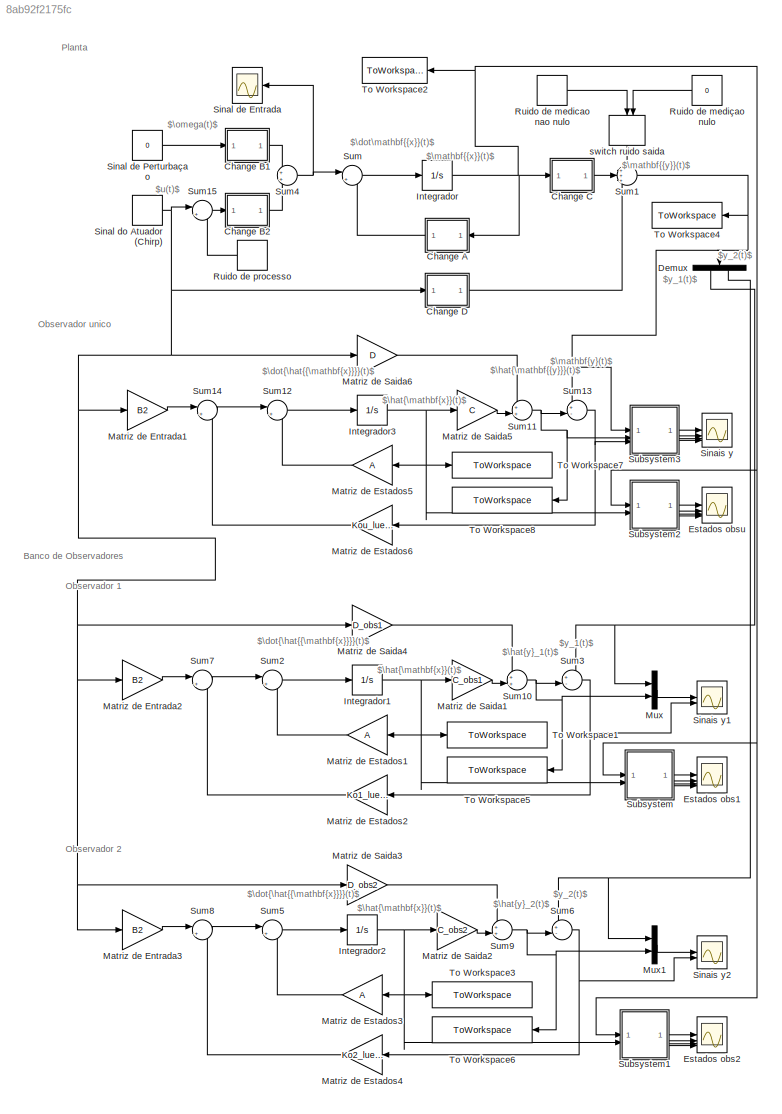
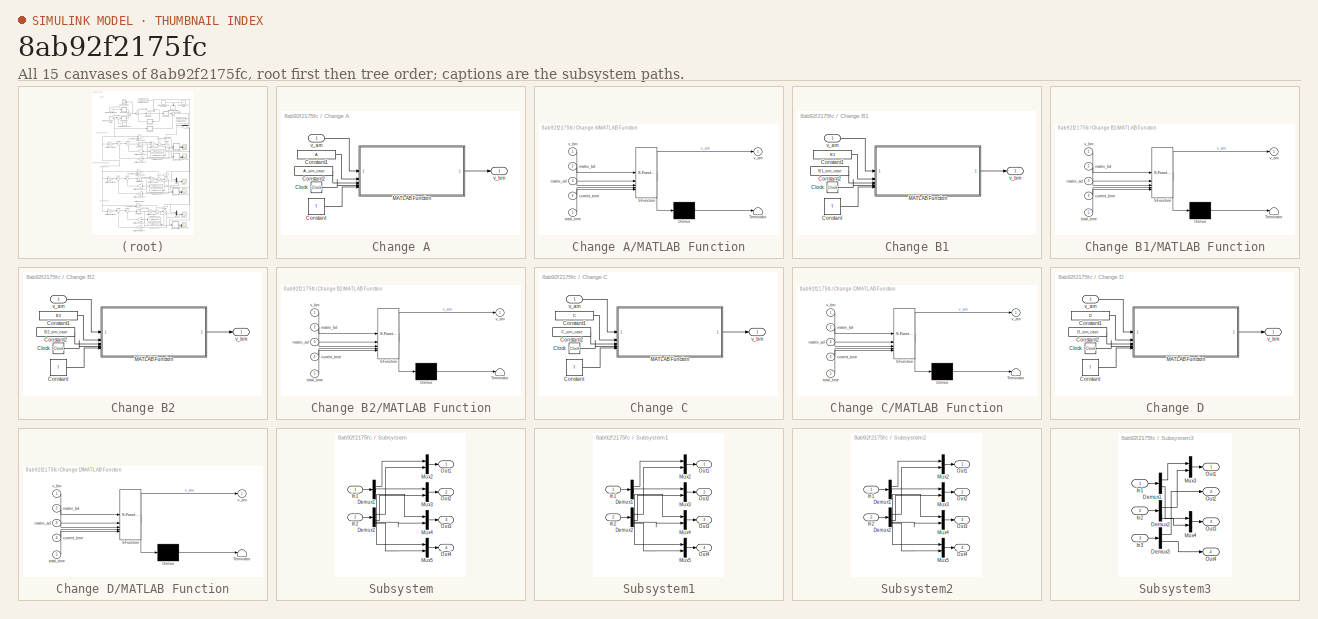
[diagram: thumbnail index - all 15 canvases of the model, root first then tree order]
MODEL slx_8ab92f2175fc
KIND model
CONFIG AbsTol = auto
CONFIG EnableMultiTasking = off
CONFIG FixedStep = dt
CONFIG MaxStep = auto
CONFIG MinStep = auto
CONFIG RelTol = 1e-3
CONFIG SampleTimeConstraint = Unconstrained
CONFIG SolverName = FixedStepAuto
CONFIG StartTime = 0.0
CONFIG StopTime = T
BLOCK [SubSystem] Change A
  NameLocation = top
BLOCK [Clock] Change A/Clock
BLOCK [Constant] Change A/Constant
  Value = T
BLOCK [Constant] Change A/Constant1
  Value = A
BLOCK [Constant] Change A/Constant2
  Value = A_sim_case
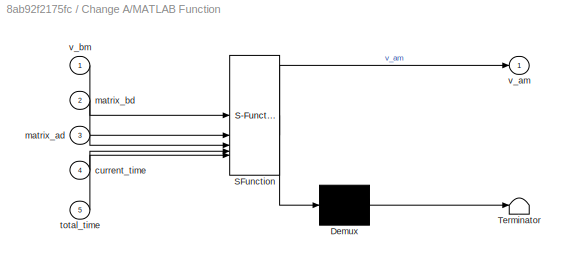
BLOCK [SubSystem] Change A/MATLAB Function
  ErrorFcn = Stateflow.Translate.translate
  LibrarySourceBlock = simulink/User-Defined\nFunctions/MATLAB Function
  PermitHierarchicalResolution = ExplicitOnly
  SFBlockType = MATLAB Function
  TreatAsAtomicUnit = on
BLOCK [Demux] Change A/MATLAB Function/ Demux 
  Outputs = 1
BLOCK [S-Function] Change A/MATLAB Function/ SFunction 
  EnableBusSupport = on
  FunctionName = sf_sfun
  PortCounts = [5 2]
  SFcnIsStateOwnerBlock = off
  SFunctionDeploymentMode = off
  Tag = Stateflow S-Function 3
BLOCK [Terminator] Change A/MATLAB Function/ Terminator 
BLOCK [Inport] Change A/MATLAB Function/current_time
  Port = 4
BLOCK [Inport] Change A/MATLAB Function/matrix_ad
  Port = 3
BLOCK [Inport] Change A/MATLAB Function/matrix_bd
  Port = 2
BLOCK [Inport] Change A/MATLAB Function/total_time
  Port = 5
BLOCK [Outport] Change A/MATLAB Function/v_am
BLOCK [Inport] Change A/MATLAB Function/v_bm
BLOCK [Inport] Change A/v_am
BLOCK [Outport] Change A/v_bm
BLOCK [SubSystem] Change B1
BLOCK [Clock] Change B1/Clock
BLOCK [Constant] Change B1/Constant
  Value = T
BLOCK [Constant] Change B1/Constant1
  Value = B1
BLOCK [Constant] Change B1/Constant2
  Value = B1_sim_case
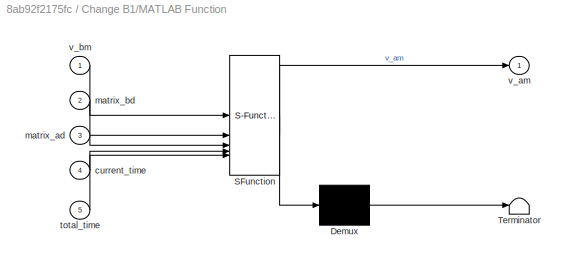
BLOCK [SubSystem] Change B1/MATLAB Function
  ErrorFcn = Stateflow.Translate.translate
  LibrarySourceBlock = simulink/User-Defined\nFunctions/MATLAB Function
  PermitHierarchicalResolution = ExplicitOnly
  SFBlockType = MATLAB Function
  TreatAsAtomicUnit = on
BLOCK [Demux] Change B1/MATLAB Function/ Demux 
  Outputs = 1
BLOCK [S-Function] Change B1/MATLAB Function/ SFunction 
  EnableBusSupport = on
  FunctionName = sf_sfun
  PortCounts = [5 2]
  SFcnIsStateOwnerBlock = off
  SFunctionDeploymentMode = off
  Tag = Stateflow S-Function 1
BLOCK [Terminator] Change B1/MATLAB Function/ Terminator 
BLOCK [Inport] Change B1/MATLAB Function/current_time
  Port = 4
BLOCK [Inport] Change B1/MATLAB Function/matrix_ad
  Port = 3
BLOCK [Inport] Change B1/MATLAB Function/matrix_bd
  Port = 2
BLOCK [Inport] Change B1/MATLAB Function/total_time
  Port = 5
BLOCK [Outport] Change B1/MATLAB Function/v_am
BLOCK [Inport] Change B1/MATLAB Function/v_bm
BLOCK [Inport] Change B1/v_am
BLOCK [Outport] Change B1/v_bm
BLOCK [SubSystem] Change B2
BLOCK [Clock] Change B2/Clock
BLOCK [Constant] Change B2/Constant
  Value = T
BLOCK [Constant] Change B2/Constant1
  Value = B2
BLOCK [Constant] Change B2/Constant2
  Value = B2_sim_case
BLOCK [SubSystem] Change B2/MATLAB Function
  ErrorFcn = Stateflow.Translate.translate
  LibrarySourceBlock = simulink/User-Defined\nFunctions/MATLAB Function
  PermitHierarchicalResolution = ExplicitOnly
  SFBlockType = MATLAB Function
  TreatAsAtomicUnit = on
BLOCK [Demux] Change B2/MATLAB Function/ Demux 
  Outputs = 1
BLOCK [S-Function] Change B2/MATLAB Function/ SFunction 
  EnableBusSupport = on
  FunctionName = sf_sfun
  PortCounts = [5 2]
  SFcnIsStateOwnerBlock = off
  SFunctionDeploymentMode = off
  Tag = Stateflow S-Function 6
BLOCK [Terminator] Change B2/MATLAB Function/ Terminator 
BLOCK [Inport] Change B2/MATLAB Function/current_time
  Port = 4
BLOCK [Inport] Change B2/MATLAB Function/matrix_ad
  Port = 3
BLOCK [Inport] Change B2/MATLAB Function/matrix_bd
  Port = 2
BLOCK [Inport] Change B2/MATLAB Function/total_time
  Port = 5
BLOCK [Outport] Change B2/MATLAB Function/v_am
BLOCK [Inport] Change B2/MATLAB Function/v_bm
BLOCK [Inport] Change B2/v_am
BLOCK [Outport] Change B2/v_bm
BLOCK [SubSystem] Change C
BLOCK [Clock] Change C/Clock
BLOCK [Constant] Change C/Constant
  Value = T
BLOCK [Constant] Change C/Constant1
  Value = C
BLOCK [Constant] Change C/Constant2
  Value = C_sim_case
BLOCK [SubSystem] Change C/MATLAB Function
  ErrorFcn = Stateflow.Translate.translate
  LibrarySourceBlock = simulink/User-Defined\nFunctions/MATLAB Function
  PermitHierarchicalResolution = ExplicitOnly
  SFBlockType = MATLAB Function
  TreatAsAtomicUnit = on
BLOCK [Demux] Change C/MATLAB Function/ Demux 
  Outputs = 1
BLOCK [S-Function] Change C/MATLAB Function/ SFunction 
  EnableBusSupport = on
  FunctionName = sf_sfun
  PortCounts = [5 2]
  SFcnIsStateOwnerBlock = off
  SFunctionDeploymentMode = off
  Tag = Stateflow S-Function 5
BLOCK [Terminator] Change C/MATLAB Function/ Terminator 
BLOCK [Inport] Change C/MATLAB Function/current_time
  Port = 4
BLOCK [Inport] Change C/MATLAB Function/matrix_ad
  Port = 3
BLOCK [Inport] Change C/MATLAB Function/matrix_bd
  Port = 2
BLOCK [Inport] Change C/MATLAB Function/total_time
  Port = 5
BLOCK [Outport] Change C/MATLAB Function/v_am
BLOCK [Inport] Change C/MATLAB Function/v_bm
BLOCK [Inport] Change C/v_am
BLOCK [Outport] Change C/v_bm
BLOCK [SubSystem] Change D
BLOCK [Clock] Change D/Clock
BLOCK [Constant] Change D/Constant
  Value = T
BLOCK [Constant] Change D/Constant1
  Value = D
BLOCK [Constant] Change D/Constant2
  Value = D_sim_case
BLOCK [SubSystem] Change D/MATLAB Function
  ErrorFcn = Stateflow.Translate.translate
  LibrarySourceBlock = simulink/User-Defined\nFunctions/MATLAB Function
  PermitHierarchicalResolution = ExplicitOnly
  SFBlockType = MATLAB Function
  TreatAsAtomicUnit = on
BLOCK [Demux] Change D/MATLAB Function/ Demux 
  Outputs = 1
BLOCK [S-Function] Change D/MATLAB Function/ SFunction 
  EnableBusSupport = on
  FunctionName = sf_sfun
  PortCounts = [5 2]
  SFcnIsStateOwnerBlock = off
  SFunctionDeploymentMode = off
  Tag = Stateflow S-Function 2
BLOCK [Terminator] Change D/MATLAB Function/ Terminator 
BLOCK [Inport] Change D/MATLAB Function/current_time
  Port = 4
BLOCK [Inport] Change D/MATLAB Function/matrix_ad
  Port = 3
BLOCK [Inport] Change D/MATLAB Function/matrix_bd
  Port = 2
BLOCK [Inport] Change D/MATLAB Function/total_time
  Port = 5
BLOCK [Outport] Change D/MATLAB Function/v_am
BLOCK [Inport] Change D/MATLAB Function/v_bm
BLOCK [Inport] Change D/v_am
BLOCK [Outport] Change D/v_bm
BLOCK [Demux] Demux
  NameLocation = left
  Outputs = 2
BLOCK [Scope] Estados obs1
  Floating = off
  NumInputPorts = 4
  ScopeSpecificationString = Simulink.scopes.TimeScopeBlockCfg('CurrentConfiguration', extmgr.ConfigurationSet(extmgr.Configuration('Core','General UI',true,'FigureColor',[1 1 1]),extmgr.Configuration('Core','Source UI',true),extmgr.Configuration('Sources','WiredSimulink',true,'DataLoggingVariableName','ScopeData1'),extmgr.Configuration('Visuals','Time Domain',true,'PlotType','Line','SerializedDisplays',{struct('MinYLimReal',...<+5014ch>
BLOCK [Scope] Estados obs2
  Floating = off
  NumInputPorts = 4
  ScopeSpecificationString = Simulink.scopes.TimeScopeBlockCfg('CurrentConfiguration', extmgr.ConfigurationSet(extmgr.Configuration('Core','General UI',true,'FigureColor',[1 1 1]),extmgr.Configuration('Core','Source UI',true),extmgr.Configuration('Sources','WiredSimulink',true,'DataLoggingVariableName','ScopeData2'),extmgr.Configuration('Visuals','Time Domain',true,'PlotType','Line','SerializedDisplays',{struct('MinYLimReal',...<+5012ch>
BLOCK [Scope] Estados obsu
  Floating = off
  NumInputPorts = 4
  ScopeSpecificationString = Simulink.scopes.TimeScopeBlockCfg('CurrentConfiguration', extmgr.ConfigurationSet(extmgr.Configuration('Core','General UI',true,'FigureColor',[1 1 1]),extmgr.Configuration('Core','Source UI',true),extmgr.Configuration('Sources','WiredSimulink',true,'DataLoggingVariableName','ScopeData1'),extmgr.Configuration('Visuals','Time Domain',true,'PlotType','Line','SerializedDisplays',{struct('MinYLimReal',...<+5010ch>
BLOCK [Integrator] Integrador
  InitialCondition = CI
BLOCK [Integrator] Integrador1
  InitialCondition = CI
BLOCK [Integrator] Integrador2
  InitialCondition = CI
BLOCK [Integrator] Integrador3
  InitialCondition = CI
BLOCK [Gain] Matriz de Entrada1
  Gain = B2
  Multiplication = Matrix(K*u)
BLOCK [Gain] Matriz de Entrada2
  Gain = B2
  Multiplication = Matrix(K*u)
BLOCK [Gain] Matriz de Entrada3
  Gain = B2
  Multiplication = Matrix(K*u)
BLOCK [Gain] Matriz de Estados1
  Gain = A
  Multiplication = Matrix(K*u)
BLOCK [Gain] Matriz de Estados2
  Gain = Ko1_luenberger_u
  Multiplication = Matrix(K*u)
BLOCK [Gain] Matriz de Estados3
  Gain = A
  Multiplication = Matrix(K*u)
BLOCK [Gain] Matriz de Estados4
  Gain = Ko2_luenberger_u
  Multiplication = Matrix(K*u)
BLOCK [Gain] Matriz de Estados5
  Gain = A
  Multiplication = Matrix(K*u)
BLOCK [Gain] Matriz de Estados6
  Gain = Kou_luenberger_u
  Multiplication = Matrix(K*u)
BLOCK [Gain] Matriz de Saida1
  Gain = C_obs1
  Multiplication = Matrix(K*u)
BLOCK [Gain] Matriz de Saida2
  Gain = C_obs2
  Multiplication = Matrix(K*u)
BLOCK [Gain] Matriz de Saida3
  Gain = D_obs2
  Multiplication = Matrix(K*u)
BLOCK [Gain] Matriz de Saida4
  Gain = D_obs1
  Multiplication = Matrix(K*u)
BLOCK [Gain] Matriz de Saida5
  Gain = C
  Multiplication = Matrix(K*u)
BLOCK [Gain] Matriz de Saida6
  Gain = D
  Multiplication = Matrix(K*u)
BLOCK [Mux] Mux
  DisplayOption = bar
  Inputs = 2
BLOCK [Mux] Mux1
  DisplayOption = bar
  Inputs = 2
BLOCK [FromFile] Ruido de medicao nao nulo
  FileName = ./../data/measurement_noise_u_data.mat
  SampleTime = 0
BLOCK [Constant] Ruido de mediçao nulo
  Value = 0
BLOCK [FromFile] Ruido de processo
  FileName = ./../data/process_noise_u_data.mat
  NameLocation = right
  SampleTime = 0
BLOCK [Scope] Sinais y
  Floating = off
  NumInputPorts = 4
  ScopeSpecificationString = Simulink.scopes.TimeScopeBlockCfg('CurrentConfiguration', extmgr.ConfigurationSet(extmgr.Configuration('Core','General UI',true,'FigureColor',[1 1 1]),extmgr.Configuration('Core','Source UI',true),extmgr.Configuration('Sources','WiredSimulink',true,'DataLoggingVariableName','ScopeData2'),extmgr.Configuration('Visuals','Time Domain',true,'PlotType','Line','SerializedDisplays',{struct('MinYLimReal',...<+4393ch>
BLOCK [Scope] Sinais y1
  Floating = off
  NumInputPorts = 2
  ScopeSpecificationString = Simulink.scopes.TimeScopeBlockCfg('CurrentConfiguration', extmgr.ConfigurationSet(extmgr.Configuration('Core','General UI',true,'FigureColor',[1 1 1]),extmgr.Configuration('Core','Source UI',true),extmgr.Configuration('Sources','WiredSimulink',true,'DataLoggingVariableName','ScopeData2'),extmgr.Configuration('Visuals','Time Domain',true,'PlotType','Line','SerializedDisplays',{struct('MinYLimReal',...<+2520ch>
BLOCK [Scope] Sinais y2
  Floating = off
  NumInputPorts = 2
  ScopeSpecificationString = Simulink.scopes.TimeScopeBlockCfg('CurrentConfiguration', extmgr.ConfigurationSet(extmgr.Configuration('Core','General UI',true,'FigureColor',[1 1 1]),extmgr.Configuration('Core','Source UI',true),extmgr.Configuration('Sources','WiredSimulink',true,'DataLoggingVariableName','ScopeData1'),extmgr.Configuration('Visuals','Time Domain',true,'PlotType','Line','SerializedDisplays',{struct('MinYLimReal',...<+2533ch>
BLOCK [Scope] Sinal de Entrada
  Floating = off
  NumInputPorts = 1
  ScopeSpecificationString = Simulink.scopes.TimeScopeBlockCfg('CurrentConfiguration', extmgr.ConfigurationSet(extmgr.Configuration('Core','General UI',true,'FigureColor',[1 1 1]),extmgr.Configuration('Core','Source UI',true),extmgr.Configuration('Sources','WiredSimulink',true,'DataLoggingVariableName','ScopeData2'),extmgr.Configuration('Visuals','Time Domain',true,'PlotType','Line','SerializedDisplays',{struct('MinYLimReal',...<+1840ch>
BLOCK [Constant] Sinal de Perturbaçao
  Value = 0
BLOCK [FromFile] Sinal do Atuador (Chirp)
  FileName = ./../data/chirp_u_data.mat
  SampleTime = 0
BLOCK [SubSystem] Subsystem
BLOCK [Demux] Subsystem/Demux1
BLOCK [Demux] Subsystem/Demux2
BLOCK [Inport] Subsystem/In1
BLOCK [Inport] Subsystem/In2
  Port = 2
BLOCK [Mux] Subsystem/Mux2
  DisplayOption = bar
  Inputs = 2
BLOCK [Mux] Subsystem/Mux3
  DisplayOption = bar
  Inputs = 2
BLOCK [Mux] Subsystem/Mux4
  DisplayOption = bar
  Inputs = 2
BLOCK [Mux] Subsystem/Mux5
  DisplayOption = bar
  Inputs = 2
BLOCK [Outport] Subsystem/Out1
BLOCK [Outport] Subsystem/Out2
  Port = 2
BLOCK [Outport] Subsystem/Out3
  Port = 3
BLOCK [Outport] Subsystem/Out4
  Port = 4
BLOCK [SubSystem] Subsystem1
BLOCK [Demux] Subsystem1/Demux1
BLOCK [Demux] Subsystem1/Demux2
BLOCK [Inport] Subsystem1/In1
BLOCK [Inport] Subsystem1/In2
  Port = 2
BLOCK [Mux] Subsystem1/Mux2
  DisplayOption = bar
  Inputs = 2
BLOCK [Mux] Subsystem1/Mux3
  DisplayOption = bar
  Inputs = 2
BLOCK [Mux] Subsystem1/Mux4
  DisplayOption = bar
  Inputs = 2
BLOCK [Mux] Subsystem1/Mux5
  DisplayOption = bar
  Inputs = 2
BLOCK [Outport] Subsystem1/Out1
BLOCK [Outport] Subsystem1/Out2
  Port = 2
BLOCK [Outport] Subsystem1/Out3
  Port = 3
BLOCK [Outport] Subsystem1/Out4
  Port = 4
BLOCK [SubSystem] Subsystem2
BLOCK [Demux] Subsystem2/Demux1
BLOCK [Demux] Subsystem2/Demux2
BLOCK [Inport] Subsystem2/In1
BLOCK [Inport] Subsystem2/In2
  Port = 2
BLOCK [Mux] Subsystem2/Mux2
  DisplayOption = bar
  Inputs = 2
BLOCK [Mux] Subsystem2/Mux3
  DisplayOption = bar
  Inputs = 2
BLOCK [Mux] Subsystem2/Mux4
  DisplayOption = bar
  Inputs = 2
BLOCK [Mux] Subsystem2/Mux5
  DisplayOption = bar
  Inputs = 2
BLOCK [Outport] Subsystem2/Out1
BLOCK [Outport] Subsystem2/Out2
  Port = 2
BLOCK [Outport] Subsystem2/Out3
  Port = 3
BLOCK [Outport] Subsystem2/Out4
  Port = 4
BLOCK [SubSystem] Subsystem3
BLOCK [Demux] Subsystem3/Demux1
  Outputs = 2
BLOCK [Demux] Subsystem3/Demux2
  Outputs = 2
BLOCK [Demux] Subsystem3/Demux3
  Outputs = 2
BLOCK [Inport] Subsystem3/In1
BLOCK [Inport] Subsystem3/In2
  Port = 2
BLOCK [Inport] Subsystem3/In3
  Port = 3
BLOCK [Mux] Subsystem3/Mux3
  DisplayOption = bar
  Inputs = 2
BLOCK [Mux] Subsystem3/Mux4
  DisplayOption = bar
  Inputs = 2
BLOCK [Outport] Subsystem3/Out1
BLOCK [Outport] Subsystem3/Out2
  Port = 2
BLOCK [Outport] Subsystem3/Out3
  Port = 3
BLOCK [Outport] Subsystem3/Out4
  Port = 4
BLOCK [Sum] Sum
  Inputs = |++
BLOCK [Sum] Sum1
  Inputs = +++
BLOCK [Sum] Sum10
  Inputs = ++|
BLOCK [Sum] Sum11
  Inputs = ++|
BLOCK [Sum] Sum12
  Inputs = |++
BLOCK [Sum] Sum13
  Inputs = +-|
BLOCK [Sum] Sum14
  Inputs = |++
BLOCK [Sum] Sum15
  Inputs = |++
BLOCK [Sum] Sum2
  Inputs = |++
BLOCK [Sum] Sum3
  Inputs = +-|
BLOCK [Sum] Sum4
BLOCK [Sum] Sum5
  Inputs = |++
BLOCK [Sum] Sum6
  Inputs = +-|
BLOCK [Sum] Sum7
  Inputs = |++
BLOCK [Sum] Sum8
  Inputs = |++
BLOCK [Sum] Sum9
  Inputs = ++|
BLOCK [ToWorkspace] To Workspace1
  FixptAsFi = on
  MaxDataPoints = inf
  SampleTime = -1
  VariableName = x_hat_obs1
BLOCK [ToWorkspace] To Workspace2
  FixptAsFi = on
  MaxDataPoints = inf
  NameLocation = top
  SampleTime = -1
  VariableName = x
BLOCK [ToWorkspace] To Workspace3
  FixptAsFi = on
  MaxDataPoints = inf
  SampleTime = -1
  VariableName = x_hat_obs2
BLOCK [ToWorkspace] To Workspace4
  FixptAsFi = on
  MaxDataPoints = inf
  NameLocation = top
  SampleTime = -1
  VariableName = y
BLOCK [ToWorkspace] To Workspace5
  FixptAsFi = on
  MaxDataPoints = inf
  NameLocation = top
  SampleTime = -1
  VariableName = y_hat_obs1
BLOCK [ToWorkspace] To Workspace6
  FixptAsFi = on
  MaxDataPoints = inf
  NameLocation = top
  SampleTime = -1
  VariableName = y_hat_obs2
BLOCK [ToWorkspace] To Workspace7
  FixptAsFi = on
  MaxDataPoints = inf
  SampleTime = -1
  VariableName = x_hat_obsu
BLOCK [ToWorkspace] To Workspace8
  FixptAsFi = on
  MaxDataPoints = inf
  NameLocation = top
  SampleTime = -1
  VariableName = y_hat_obsu
BLOCK [ManualSwitch] switch ruido saida
  NameLocation = right
ANNOTATION (root): $\omega(t)$
ANNOTATION (root): $u(t)$
ANNOTATION (root): $\dot{\hat{{\mathbf{x}}}}(t)$
ANNOTATION (root): $\hat{\mathbf{x}}(t)$
ANNOTATION (root): $\hat{\mathbf{{y}}}(t)$
ANNOTATION (root): $\hat{y}_1(t)$
ANNOTATION (root): $\hat{y}_2(t)$
ANNOTATION (root): $\mathbf{y}(t)$
ANNOTATION (root): $y_1(t)$
ANNOTATION (root): $y_2(t)$
ANNOTATION (root): $\dot\mathbf{{x}}(t)$
ANNOTATION (root): $\mathbf{{x}}(t)$
ANNOTATION (root): $\mathbf{{y}}(t)$
ANNOTATION (root): Banco de Observadores
ANNOTATION (root): Observador 1
ANNOTATION (root): Observador 2
ANNOTATION (root): Observador unico
ANNOTATION (root): Planta
LINE Change A/Clock:1 -> Change A/MATLAB Function:4
LINE Change A/Constant1:1 -> Change A/MATLAB Function:2
LINE Change A/Constant2:1 -> Change A/MATLAB Function:3
LINE Change A/Constant:1 -> Change A/MATLAB Function:5
LINE Change A/MATLAB Function:1 -> Change A/v_bm:1
LINE Change A/v_am:1 -> Change A/MATLAB Function:1
LINE Change A:1 -> Sum:2
LINE Change B1/Clock:1 -> Change B1/MATLAB Function:4
LINE Change B1/Constant1:1 -> Change B1/MATLAB Function:2
LINE Change B1/Constant2:1 -> Change B1/MATLAB Function:3
LINE Change B1/Constant:1 -> Change B1/MATLAB Function:5
LINE Change B1/MATLAB Function:1 -> Change B1/v_bm:1
LINE Change B1/v_am:1 -> Change B1/MATLAB Function:1
LINE Change B1:1 -> Sum4:1
LINE Change B2/Clock:1 -> Change B2/MATLAB Function:4
LINE Change B2/Constant1:1 -> Change B2/MATLAB Function:2
LINE Change B2/Constant2:1 -> Change B2/MATLAB Function:3
LINE Change B2/Constant:1 -> Change B2/MATLAB Function:5
LINE Change B2/MATLAB Function:1 -> Change B2/v_bm:1
LINE Change B2/v_am:1 -> Change B2/MATLAB Function:1
LINE Change B2:1 -> Sum4:2
LINE Change C/Clock:1 -> Change C/MATLAB Function:4
LINE Change C/Constant1:1 -> Change C/MATLAB Function:2
LINE Change C/Constant2:1 -> Change C/MATLAB Function:3
LINE Change C/Constant:1 -> Change C/MATLAB Function:5
LINE Change C/MATLAB Function:1 -> Change C/v_bm:1
LINE Change C/v_am:1 -> Change C/MATLAB Function:1
LINE Change C:1 -> Sum1:2
LINE Change D/Clock:1 -> Change D/MATLAB Function:4
LINE Change D/Constant1:1 -> Change D/MATLAB Function:2
LINE Change D/Constant2:1 -> Change D/MATLAB Function:3
LINE Change D/Constant:1 -> Change D/MATLAB Function:5
LINE Change D/MATLAB Function:1 -> Change D/v_bm:1
LINE Change D/v_am:1 -> Change D/MATLAB Function:1
LINE Change D:1 -> Sum1:3
NET Demux:1 -> Mux:1, Sum3:1
NET Demux:2 -> Mux1:1, Sum6:1
NET Integrador1:1 -> Matriz de Estados1:1, Matriz de Saida1:1, Subsystem:2, To Workspace1:1
NET Integrador2:1 -> Matriz de Estados3:1, Matriz de Saida2:1, Subsystem1:2, To Workspace3:1
NET Integrador3:1 -> Matriz de Estados5:1, Matriz de Saida5:1, Subsystem2:2, To Workspace7:1
NET Integrador:1 -> Change A:1, Change C:1, Subsystem1:1, Subsystem2:1, Subsystem:1, To Workspace2:1
LINE Matriz de Entrada1:1 -> Sum14:1
LINE Matriz de Entrada2:1 -> Sum7:1
LINE Matriz de Entrada3:1 -> Sum8:1
LINE Matriz de Estados1:1 -> Sum2:2
LINE Matriz de Estados2:1 -> Sum7:2
LINE Matriz de Estados3:1 -> Sum5:2
LINE Matriz de Estados4:1 -> Sum8:2
LINE Matriz de Estados5:1 -> Sum12:2
LINE Matriz de Estados6:1 -> Sum14:2
LINE Matriz de Saida1:1 -> Sum10:2
LINE Matriz de Saida2:1 -> Sum9:2
LINE Matriz de Saida3:1 -> Sum9:1
LINE Matriz de Saida4:1 -> Sum10:1
LINE Matriz de Saida5:1 -> Sum11:2
LINE Matriz de Saida6:1 -> Sum11:1
LINE Mux1:1 -> Sinais y2:1
LINE Mux:1 -> Sinais y1:1
LINE Ruido de medicao nao nulo:1 -> switch ruido saida:1
LINE Ruido de mediçao nulo:1 -> switch ruido saida:2
LINE Ruido de processo:1 -> Sum15:2
LINE Sinal de Perturbaçao:1 -> Change B1:1
NET Sinal do Atuador (Chirp):1 -> Change D:1, Matriz de Entrada1:1, Matriz de Entrada2:1, Matriz de Entrada3:1, Matriz de Saida3:1, Matriz de Saida4:1, Matriz de Saida6:1, Sum15:1
LINE Subsystem/Demux1:1 -> Subsystem/Mux2:1
LINE Subsystem/Demux1:2 -> Subsystem/Mux3:1
LINE Subsystem/Demux1:3 -> Subsystem/Mux4:1
LINE Subsystem/Demux1:4 -> Subsystem/Mux5:1
LINE Subsystem/Demux2:1 -> Subsystem/Mux2:2
LINE Subsystem/Demux2:2 -> Subsystem/Mux3:2
LINE Subsystem/Demux2:3 -> Subsystem/Mux4:2
LINE Subsystem/Demux2:4 -> Subsystem/Mux5:2
LINE Subsystem/In1:1 -> Subsystem/Demux1:1
LINE Subsystem/In2:1 -> Subsystem/Demux2:1
LINE Subsystem/Mux2:1 -> Subsystem/Out1:1
LINE Subsystem/Mux3:1 -> Subsystem/Out2:1
LINE Subsystem/Mux4:1 -> Subsystem/Out3:1
LINE Subsystem/Mux5:1 -> Subsystem/Out4:1
LINE Subsystem1/Demux1:1 -> Subsystem1/Mux2:1
LINE Subsystem1/Demux1:2 -> Subsystem1/Mux3:1
LINE Subsystem1/Demux1:3 -> Subsystem1/Mux4:1
LINE Subsystem1/Demux1:4 -> Subsystem1/Mux5:1
LINE Subsystem1/Demux2:1 -> Subsystem1/Mux2:2
LINE Subsystem1/Demux2:2 -> Subsystem1/Mux3:2
LINE Subsystem1/Demux2:3 -> Subsystem1/Mux4:2
LINE Subsystem1/Demux2:4 -> Subsystem1/Mux5:2
LINE Subsystem1/In1:1 -> Subsystem1/Demux1:1
LINE Subsystem1/In2:1 -> Subsystem1/Demux2:1
LINE Subsystem1/Mux2:1 -> Subsystem1/Out1:1
LINE Subsystem1/Mux3:1 -> Subsystem1/Out2:1
LINE Subsystem1/Mux4:1 -> Subsystem1/Out3:1
LINE Subsystem1/Mux5:1 -> Subsystem1/Out4:1
LINE Subsystem1:1 -> Estados obs2:1
LINE Subsystem1:2 -> Estados obs2:2
LINE Subsystem1:3 -> Estados obs2:3
LINE Subsystem1:4 -> Estados obs2:4
LINE Subsystem2/Demux1:1 -> Subsystem2/Mux2:1
LINE Subsystem2/Demux1:2 -> Subsystem2/Mux3:1
LINE Subsystem2/Demux1:3 -> Subsystem2/Mux4:1
LINE Subsystem2/Demux1:4 -> Subsystem2/Mux5:1
LINE Subsystem2/Demux2:1 -> Subsystem2/Mux2:2
LINE Subsystem2/Demux2:2 -> Subsystem2/Mux3:2
LINE Subsystem2/Demux2:3 -> Subsystem2/Mux4:2
LINE Subsystem2/Demux2:4 -> Subsystem2/Mux5:2
LINE Subsystem2/In1:1 -> Subsystem2/Demux1:1
LINE Subsystem2/In2:1 -> Subsystem2/Demux2:1
LINE Subsystem2/Mux2:1 -> Subsystem2/Out1:1
LINE Subsystem2/Mux3:1 -> Subsystem2/Out2:1
LINE Subsystem2/Mux4:1 -> Subsystem2/Out3:1
LINE Subsystem2/Mux5:1 -> Subsystem2/Out4:1
LINE Subsystem2:1 -> Estados obsu:1
LINE Subsystem2:2 -> Estados obsu:2
LINE Subsystem2:3 -> Estados obsu:3
LINE Subsystem2:4 -> Estados obsu:4
LINE Subsystem3/Demux1:1 -> Subsystem3/Mux3:1
LINE Subsystem3/Demux1:2 -> Subsystem3/Mux4:1
LINE Subsystem3/Demux2:1 -> Subsystem3/Mux3:2
LINE Subsystem3/Demux2:2 -> Subsystem3/Mux4:2
LINE Subsystem3/Demux3:1 -> Subsystem3/Out2:1
LINE Subsystem3/Demux3:2 -> Subsystem3/Out4:1
LINE Subsystem3/In1:1 -> Subsystem3/Demux1:1
LINE Subsystem3/In2:1 -> Subsystem3/Demux2:1
LINE Subsystem3/In3:1 -> Subsystem3/Demux3:1
LINE Subsystem3/Mux3:1 -> Subsystem3/Out1:1
LINE Subsystem3/Mux4:1 -> Subsystem3/Out3:1
LINE Subsystem3:1 -> Sinais y:1
LINE Subsystem3:2 -> Sinais y:2
LINE Subsystem3:3 -> Sinais y:3
LINE Subsystem3:4 -> Sinais y:4
LINE Subsystem:1 -> Estados obs1:1
LINE Subsystem:2 -> Estados obs1:2
LINE Subsystem:3 -> Estados obs1:3
LINE Subsystem:4 -> Estados obs1:4
NET Sum10:1 -> Mux:2, Sum3:2, To Workspace5:1
NET Sum11:1 -> Subsystem3:2, Sum13:2, To Workspace8:1
LINE Sum12:1 -> Integrador3:1
NET Sum13:1 -> Matriz de Estados6:1, Subsystem3:3
LINE Sum14:1 -> Sum12:1
LINE Sum15:1 -> Change B2:1
NET Sum1:1 -> Demux:1, Subsystem3:1, Sum13:1, To Workspace4:1
LINE Sum2:1 -> Integrador1:1
NET Sum3:1 -> Matriz de Estados2:1, Sinais y1:2
NET Sum4:1 -> Sinal de Entrada:1, Sum:1
LINE Sum5:1 -> Integrador2:1
NET Sum6:1 -> Matriz de Estados4:1, Sinais y2:2
LINE Sum7:1 -> Sum2:1
LINE Sum8:1 -> Sum5:1
NET Sum9:1 -> Mux1:2, Sum6:2, To Workspace6:1
LINE Sum:1 -> Integrador:1
LINE switch ruido saida:1 -> Sum1:1
note: NET lines group one-source signal fan-out (src -> all destinations, sorted); 1:1 wires keep LINE
CHART Change B1/MATLAB Function states=1 transitions=1
  STATE_LABEL 'eML_blk_kernel()'
  STATE_LABEL 'SCRIPT:\nfunction v_am = change_matrix(v_bm, matrix_bd, matrix_ad, current_time, total_time)\n    if current_time < total_time/2\n        v_am = matrix_bd*v_bm;\n        return\n    end\n    v_am = matrix_ad*v_bm;\nend'  <repeated x5 — deduplicated; at blocks: MATLAB Function>
CHART Change D/MATLAB Function states=1 transitions=1
  STATE_LABEL 'eML_blk_kernel()'
CHART Change A/MATLAB Function states=1 transitions=1
  STATE_LABEL 'eML_blk_kernel()'
CHART Change C/MATLAB Function states=1 transitions=1
  STATE_LABEL 'eML_blk_kernel()'
CHART Change B2/MATLAB Function states=1 transitions=1
  STATE_LABEL 'eML_blk_kernel()'
CHART  states=0 transitions=0
CHART  states=0 transitions=0
CHART  states=0 transitions=0
CHART  states=0 transitions=0
CHART  states=0 transitions=0
